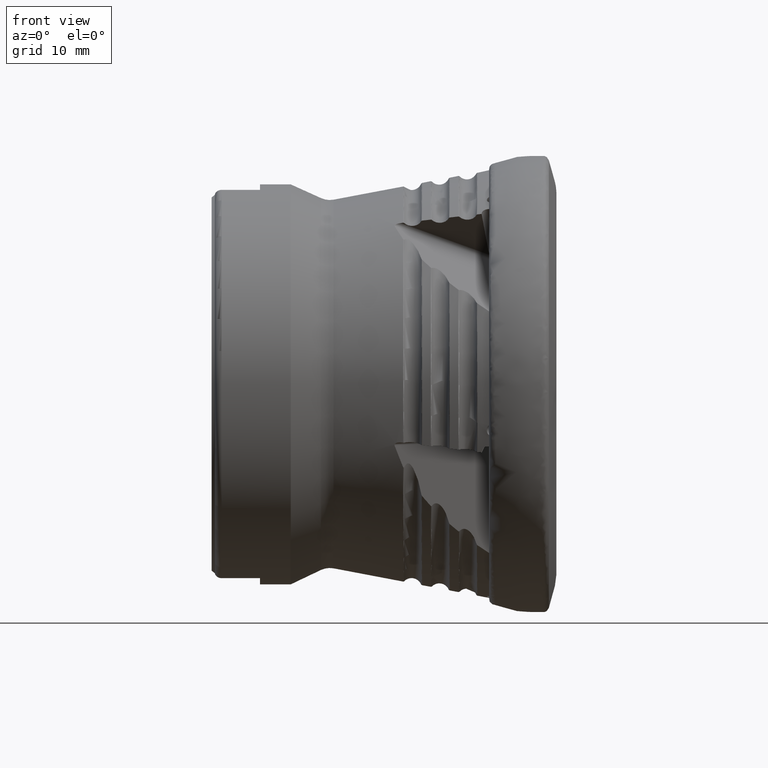
[diagram: clean part render]
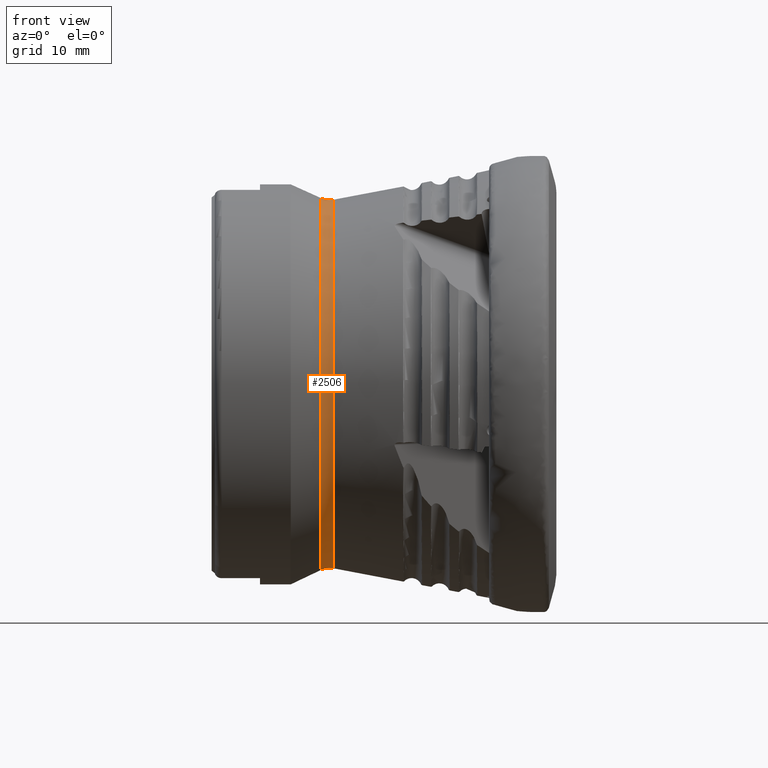
[diagram: same view with one face highlighted and labeled with its STEP entity id]
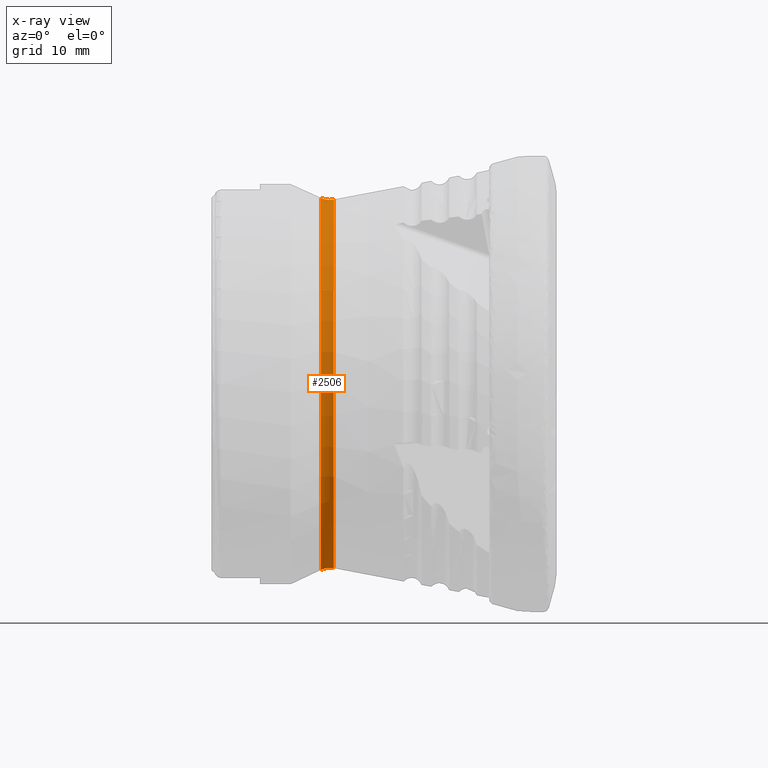
[diagram: x-ray of the same camera — body ghosted, the highlighted face saturated]
A machine part, front view. The second image highlights one B-rep face of the part: STEP entity #2506.
The next image is the same camera in x-ray: the body ghosted, the highlighted face saturated — about 0% of this face is hidden behind the body in this view.
In plain terms, the highlighted toroidal blend (fillet) surface has major radius 29.6305 mm and minor (blend) radius 3 mm.
Its self-contained STEP definition (entity closure, byte-faithful):
#106 = ORIENTED_EDGE ( 'NONE', *, *, #9443, .T. ) ;
#510 = CIRCLE ( 'NONE', #2174, 26.68324782380191000 ) ;
#1271 = CARTESIAN_POINT ( 'NONE',  ( -31.33428734858307500, 0.0000000000000000000, -26.68324782380191000 ) ) ;
#1681 = VERTEX_POINT ( 'NONE', #3843 ) ;
#1903 = ORIENTED_EDGE ( 'NONE', *, *, #6126, .F. ) ;
#2030 = DIRECTION ( 'NONE',  ( 1.000000000000000000, -0.0000000000000000000, -0.0000000000000000000 ) ) ;
#2130 = CARTESIAN_POINT ( 'NONE',  ( -31.33428734858307500, 0.0000000000000000000, 0.0000000000000000000 ) ) ;
#2174 = AXIS2_PLACEMENT_3D ( 'NONE', #2130, #8173, #2999 ) ;
#2506 = ADVANCED_FACE ( 'NONE', ( #6293, #10612 ), #8593, .F. ) ;
#2530 = CIRCLE ( 'NONE', #6383, 26.92170001190708500 ) ;
#2999 = DIRECTION ( 'NONE',  ( 0.0000000000000000000, 0.0000000000000000000, -1.000000000000000000 ) ) ;
#3843 = CARTESIAN_POINT ( 'NONE',  ( -33.18403469254878500, 0.0000000000000000000, -26.92170001190708500 ) ) ;
#4240 = VERTEX_POINT ( 'NONE', #1271 ) ;
#4788 = DIRECTION ( 'NONE',  ( 0.0000000000000000000, 0.0000000000000000000, -1.000000000000000000 ) ) ;
#6126 = EDGE_CURVE ( 'NONE', #4240, #4240, #510, .T. ) ;
#6293 = FACE_OUTER_BOUND ( 'NONE', #9345, .T. ) ;
#6383 = AXIS2_PLACEMENT_3D ( 'NONE', #7187, #2030, #8070 ) ;
#6450 = DIRECTION ( 'NONE',  ( 1.000000000000000000, -0.0000000000000000000, -0.0000000000000000000 ) ) ;
#6960 = EDGE_LOOP ( 'NONE', ( #1903 ) ) ;
#7070 = AXIS2_PLACEMENT_3D ( 'NONE', #9955, #6450, #4788 ) ;
#7187 = CARTESIAN_POINT ( 'NONE',  ( -33.18403469254878500, 0.0000000000000000000, 0.0000000000000000000 ) ) ;
#8070 = DIRECTION ( 'NONE',  ( 0.0000000000000000000, 0.0000000000000000000, -1.000000000000000000 ) ) ;
#8173 = DIRECTION ( 'NONE',  ( 1.000000000000000000, -0.0000000000000000000, -0.0000000000000000000 ) ) ;
#8593 = TOROIDAL_SURFACE ( 'NONE', #7070, 29.63045761705902600, 3.000000000000000000 ) ;
#9345 = EDGE_LOOP ( 'NONE', ( #106 ) ) ;
#9443 = EDGE_CURVE ( 'NONE', #1681, #1681, #2530, .T. ) ;
#9955 = CARTESIAN_POINT ( 'NONE',  ( -31.89460371861821400, 0.0000000000000000000, 0.0000000000000000000 ) ) ;
#10612 = FACE_OUTER_BOUND ( 'NONE', #6960, .T. ) ;